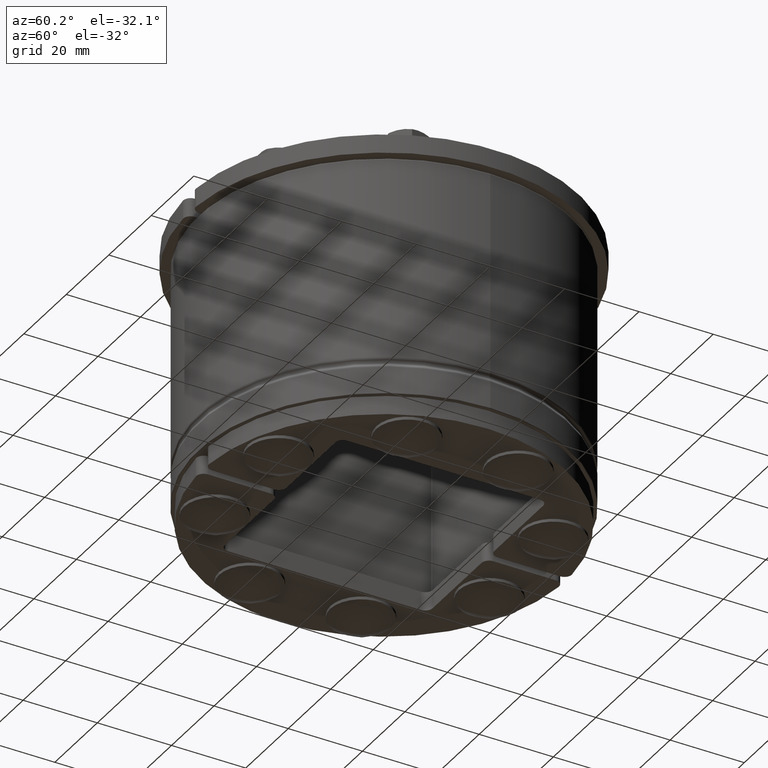
[diagram: clean part render]
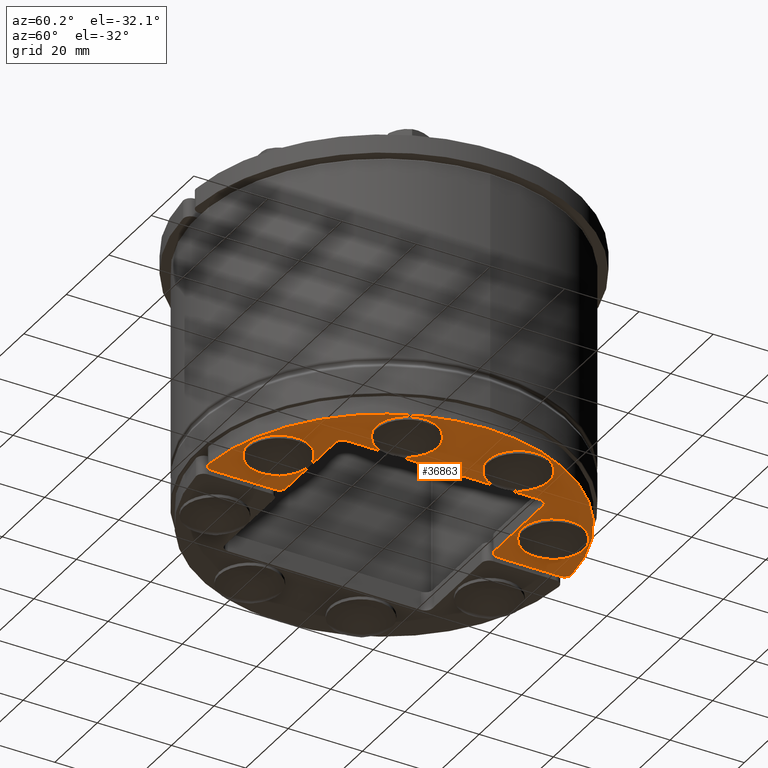
[diagram: same view with one face highlighted and labeled with its STEP entity id]
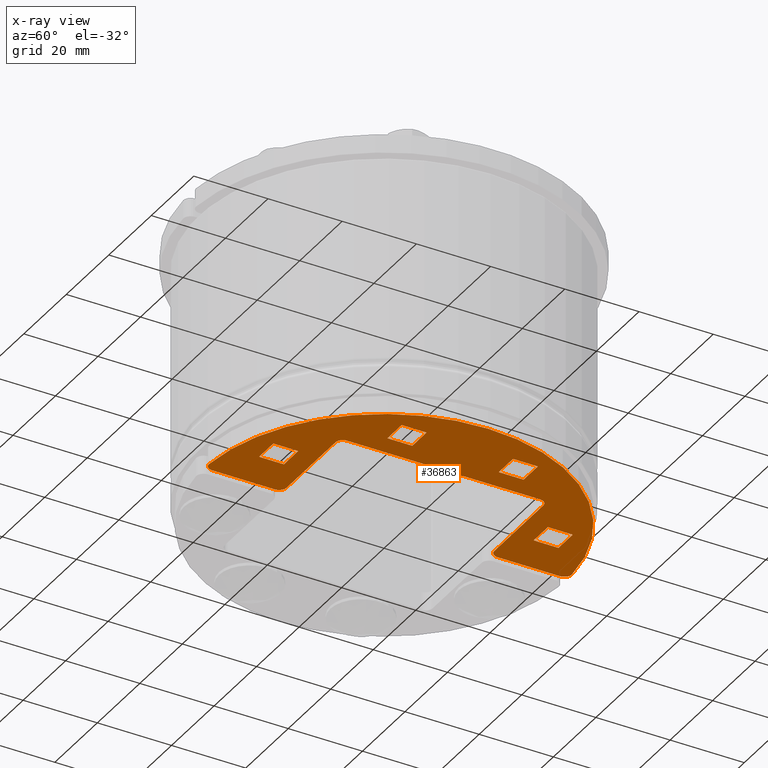
[diagram: x-ray of the same camera — body ghosted, the highlighted face saturated]
A machine part, auxiliary view. The second image highlights one B-rep face of the part: STEP entity #36863.
The next image is the same camera in x-ray: the body ghosted, the highlighted face saturated — about 0% of this face is hidden behind the body in this view.
In plain terms, the highlighted planar face has unit normal (0, 0, -1).
Its self-contained STEP definition (entity closure, byte-faithful):
#35899=CARTESIAN_POINT('',(46.904157598234299,-0.999999999999986,5.0));
#35900=VERTEX_POINT('',#35899);
#35901=CARTESIAN_POINT('',(48.900079198159162,-3.12765957446807,5.0));
#35902=VERTEX_POINT('',#35901);
#35903=CARTESIAN_POINT('',(46.904157598234299,-2.999999999999986,5.0));
#35904=DIRECTION('',(0.0,0.0,-1.0));
#35905=DIRECTION('',(0.729324957489472,0.684167454928236,0.0));
#35906=AXIS2_PLACEMENT_3D('',#35903,#35904,#35905);
#35907=CIRCLE('',#35906,2.0);
#35908=EDGE_CURVE('',#35900,#35902,#35907,.T.);
#35950=CARTESIAN_POINT('',(30.000000000000004,-0.999999999999991,5.0));
#35951=VERTEX_POINT('',#35950);
#35958=CARTESIAN_POINT('',(30.000000000000007,-0.999999999999991,5.0));
#35959=DIRECTION('',(1.0,0.0,0.0));
#35960=VECTOR('',#35959,16.904157598234292);
#35961=LINE('',#35958,#35960);
#35962=EDGE_CURVE('',#35951,#35900,#35961,.T.);
#36202=CARTESIAN_POINT('',(28.000000000000004,-2.999999999999994,5.0));
#36203=VERTEX_POINT('',#36202);
#36204=CARTESIAN_POINT('',(30.000000000000004,-2.999999999999993,5.0));
#36205=DIRECTION('',(0.0,0.0,-1.0));
#36206=DIRECTION('',(-0.707106781186548,0.707106781186547,0.0));
#36207=AXIS2_PLACEMENT_3D('',#36204,#36205,#36206);
#36208=CIRCLE('',#36207,2.0);
#36209=EDGE_CURVE('',#36203,#35951,#36208,.T.);
#36229=CARTESIAN_POINT('',(28.000000000000014,-25.999999999999996,5.0));
#36230=VERTEX_POINT('',#36229);
#36237=CARTESIAN_POINT('',(28.000000000000014,-26.0,5.0));
#36238=DIRECTION('',(0.0,1.0,0.0));
#36239=VECTOR('',#36238,23.000000000000004);
#36240=LINE('',#36237,#36239);
#36241=EDGE_CURVE('',#36230,#36203,#36240,.T.);
#36252=CARTESIAN_POINT('',(26.000000000000014,-28.0,5.0));
#36253=VERTEX_POINT('',#36252);
#36260=CARTESIAN_POINT('',(26.000000000000014,-25.999999999999996,5.0));
#36261=DIRECTION('',(0.0,0.0,1.0));
#36262=DIRECTION('',(0.707106781186548,-0.707106781186548,0.0));
#36263=AXIS2_PLACEMENT_3D('',#36260,#36261,#36262);
#36264=CIRCLE('',#36263,2.0);
#36265=EDGE_CURVE('',#36253,#36230,#36264,.T.);
#36278=CARTESIAN_POINT('',(-25.999999999999996,-28.000000000000007,5.0));
#36279=VERTEX_POINT('',#36278);
#36286=CARTESIAN_POINT('',(-26.0,-28.000000000000007,5.0));
#36287=DIRECTION('',(1.0,0.0,0.0));
#36288=VECTOR('',#36287,52.000000000000014);
#36289=LINE('',#36286,#36288);
#36290=EDGE_CURVE('',#36279,#36253,#36289,.T.);
#36300=CARTESIAN_POINT('',(-30.000000000000007,-1.000000000000006,5.0));
#36301=VERTEX_POINT('',#36300);
#36302=CARTESIAN_POINT('',(-28.000000000000004,-3.000000000000005,5.0));
#36303=VERTEX_POINT('',#36302);
#36304=CARTESIAN_POINT('',(-30.000000000000007,-3.000000000000006,5.0));
#36305=DIRECTION('',(0.0,0.0,-1.0));
#36306=DIRECTION('',(0.707106781186549,0.707106781186546,0.0));
#36307=AXIS2_PLACEMENT_3D('',#36304,#36305,#36306);
#36308=CIRCLE('',#36307,2.0);
#36309=EDGE_CURVE('',#36301,#36303,#36308,.T.);
#36334=CARTESIAN_POINT('',(-46.904157598234306,-1.000000000000009,5.0));
#36335=VERTEX_POINT('',#36334);
#36342=CARTESIAN_POINT('',(-46.904157598234306,-1.000000000000009,5.0));
#36343=DIRECTION('',(1.0,0.0,0.0));
#36344=VECTOR('',#36343,16.904157598234296);
#36345=LINE('',#36342,#36344);
#36346=EDGE_CURVE('',#36335,#36301,#36345,.T.);
#36356=CARTESIAN_POINT('',(-48.900079198159162,-3.127659574468089,5.0));
#36357=VERTEX_POINT('',#36356);
#36358=CARTESIAN_POINT('',(-46.904157598234306,-3.000000000000004,5.0));
#36359=DIRECTION('',(0.0,0.0,-1.0));
#36360=DIRECTION('',(-0.729324957489473,0.684167454928235,0.0));
#36361=AXIS2_PLACEMENT_3D('',#36358,#36359,#36360);
#36362=CIRCLE('',#36361,2.0);
#36363=EDGE_CURVE('',#36357,#36335,#36362,.T.);
#36382=CARTESIAN_POINT('',(-28.0,-26.000000000000007,5.0));
#36383=VERTEX_POINT('',#36382);
#36390=CARTESIAN_POINT('',(-25.999999999999996,-26.000000000000007,5.0));
#36391=DIRECTION('',(0.0,0.0,1.0));
#36392=DIRECTION('',(-0.707106781186548,-0.707106781186548,0.0));
#36393=AXIS2_PLACEMENT_3D('',#36390,#36391,#36392);
#36394=CIRCLE('',#36393,2.0);
#36395=EDGE_CURVE('',#36383,#36279,#36394,.T.);
#36407=CARTESIAN_POINT('',(-28.000000000000004,-3.000000000000005,5.0));
#36408=DIRECTION('',(0.0,-1.0,0.0));
#36409=VECTOR('',#36408,23.0);
#36410=LINE('',#36407,#36409);
#36411=EDGE_CURVE('',#36303,#36383,#36410,.T.);
#36424=CARTESIAN_POINT('',(40.350000000000001,-18.350000000000001,5.0));
#36425=VERTEX_POINT('',#36424);
#36432=CARTESIAN_POINT('',(40.350000000000001,-11.65,5.0));
#36433=VERTEX_POINT('',#36432);
#36434=CARTESIAN_POINT('',(40.350000000000001,-11.649999999999999,5.0));
#36435=DIRECTION('',(0.0,-1.0,0.0));
#36436=VECTOR('',#36435,6.699999999999999);
#36437=LINE('',#36434,#36436);
#36438=EDGE_CURVE('',#36433,#36425,#36437,.T.);
#36456=CARTESIAN_POINT('',(33.650000000000006,-11.65,5.0));
#36457=VERTEX_POINT('',#36456);
#36458=CARTESIAN_POINT('',(33.649999999999999,-11.65,5.0));
#36459=DIRECTION('',(1.0,0.0,0.0));
#36460=VECTOR('',#36459,6.700000000000003);
#36461=LINE('',#36458,#36460);
#36462=EDGE_CURVE('',#36457,#36433,#36461,.T.);
#36480=CARTESIAN_POINT('',(33.650000000000006,-18.350000000000001,5.0));
#36481=VERTEX_POINT('',#36480);
#36482=CARTESIAN_POINT('',(33.650000000000006,-18.350000000000001,5.0));
#36483=DIRECTION('',(0.0,1.0,0.0));
#36484=VECTOR('',#36483,6.700000000000001);
#36485=LINE('',#36482,#36484);
#36486=EDGE_CURVE('',#36481,#36457,#36485,.T.);
#36504=CARTESIAN_POINT('',(40.350000000000001,-18.350000000000001,5.0));
#36505=DIRECTION('',(-1.0,0.0,0.0));
#36506=VECTOR('',#36505,6.699999999999996);
#36507=LINE('',#36504,#36506);
#36508=EDGE_CURVE('',#36425,#36481,#36507,.T.);
#36520=CARTESIAN_POINT('',(18.350000000000001,-40.350000000000001,5.0));
#36521=VERTEX_POINT('',#36520);
#36528=CARTESIAN_POINT('',(18.350000000000005,-33.649999999999999,5.0));
#36529=VERTEX_POINT('',#36528);
#36530=CARTESIAN_POINT('',(18.350000000000005,-33.649999999999999,5.0));
#36531=DIRECTION('',(0.0,-1.0,0.0));
#36532=VECTOR('',#36531,6.700000000000003);
#36533=LINE('',#36530,#36532);
#36534=EDGE_CURVE('',#36529,#36521,#36533,.T.);
#36552=CARTESIAN_POINT('',(11.649999999999995,-33.649999999999999,5.0));
#36553=VERTEX_POINT('',#36552);
#36554=CARTESIAN_POINT('',(11.649999999999997,-33.649999999999991,5.0));
#36555=DIRECTION('',(1.0,0.0,0.0));
#36556=VECTOR('',#36555,6.700000000000008);
#36557=LINE('',#36554,#36556);
#36558=EDGE_CURVE('',#36553,#36529,#36557,.T.);
#36576=CARTESIAN_POINT('',(11.65,-40.350000000000001,5.0));
#36577=VERTEX_POINT('',#36576);
#36578=CARTESIAN_POINT('',(11.65,-40.350000000000001,5.0));
#36579=DIRECTION('',(0.0,1.0,0.0));
#36580=VECTOR('',#36579,6.700000000000003);
#36581=LINE('',#36578,#36580);
#36582=EDGE_CURVE('',#36577,#36553,#36581,.T.);
#36600=CARTESIAN_POINT('',(18.350000000000001,-40.350000000000001,5.0));
#36601=DIRECTION('',(-1.0,0.0,0.0));
#36602=VECTOR('',#36601,6.700000000000001);
#36603=LINE('',#36600,#36602);
#36604=EDGE_CURVE('',#36521,#36577,#36603,.T.);
#36616=CARTESIAN_POINT('',(-11.65,-40.350000000000001,5.0));
#36617=VERTEX_POINT('',#36616);
#36624=CARTESIAN_POINT('',(-11.65,-33.649999999999999,5.0));
#36625=VERTEX_POINT('',#36624);
#36626=CARTESIAN_POINT('',(-11.65,-33.649999999999999,5.0));
#36627=DIRECTION('',(0.0,-1.0,0.0));
#36628=VECTOR('',#36627,6.700000000000003);
#36629=LINE('',#36626,#36628);
#36630=EDGE_CURVE('',#36625,#36617,#36629,.T.);
#36648=CARTESIAN_POINT('',(-18.350000000000001,-33.649999999999999,5.0));
#36649=VERTEX_POINT('',#36648);
#36650=CARTESIAN_POINT('',(-18.350000000000001,-33.649999999999991,5.0));
#36651=DIRECTION('',(1.0,0.0,0.0));
#36652=VECTOR('',#36651,6.700000000000001);
#36653=LINE('',#36650,#36652);
#36654=EDGE_CURVE('',#36649,#36625,#36653,.T.);
#36672=CARTESIAN_POINT('',(-18.350000000000001,-40.350000000000001,5.0));
#36673=VERTEX_POINT('',#36672);
#36674=CARTESIAN_POINT('',(-18.350000000000001,-40.350000000000001,5.0));
#36675=DIRECTION('',(0.0,1.0,0.0));
#36676=VECTOR('',#36675,6.700000000000003);
#36677=LINE('',#36674,#36676);
#36678=EDGE_CURVE('',#36673,#36649,#36677,.T.);
#36696=CARTESIAN_POINT('',(-11.649999999999999,-40.350000000000001,5.0));
#36697=DIRECTION('',(-1.0,0.0,0.0));
#36698=VECTOR('',#36697,6.699999999999999);
#36699=LINE('',#36696,#36698);
#36700=EDGE_CURVE('',#36617,#36673,#36699,.T.);
#36712=CARTESIAN_POINT('',(-33.649999999999999,-18.350000000000005,5.0));
#36713=VERTEX_POINT('',#36712);
#36720=CARTESIAN_POINT('',(-33.650000000000006,-11.650000000000006,5.0));
#36721=VERTEX_POINT('',#36720);
#36722=CARTESIAN_POINT('',(-33.649999999999999,-11.650000000000004,5.0));
#36723=DIRECTION('',(0.0,-1.0,0.0));
#36724=VECTOR('',#36723,6.699999999999998);
#36725=LINE('',#36722,#36724);
#36726=EDGE_CURVE('',#36721,#36713,#36725,.T.);
#36744=CARTESIAN_POINT('',(-40.350000000000001,-11.650000000000006,5.0));
#36745=VERTEX_POINT('',#36744);
#36746=CARTESIAN_POINT('',(-40.350000000000001,-11.650000000000006,5.0));
#36747=DIRECTION('',(1.0,0.0,0.0));
#36748=VECTOR('',#36747,6.699999999999996);
#36749=LINE('',#36746,#36748);
#36750=EDGE_CURVE('',#36745,#36721,#36749,.T.);
#36768=CARTESIAN_POINT('',(-40.350000000000001,-18.350000000000005,5.0));
#36769=VERTEX_POINT('',#36768);
#36770=CARTESIAN_POINT('',(-40.350000000000001,-18.350000000000005,5.0));
#36771=DIRECTION('',(0.0,1.0,0.0));
#36772=VECTOR('',#36771,6.699999999999999);
#36773=LINE('',#36770,#36772);
#36774=EDGE_CURVE('',#36769,#36745,#36773,.T.);
#36792=CARTESIAN_POINT('',(-33.649999999999999,-18.350000000000001,5.0));
#36793=DIRECTION('',(-1.0,0.0,0.0));
#36794=VECTOR('',#36793,6.700000000000003);
#36795=LINE('',#36792,#36794);
#36796=EDGE_CURVE('',#36713,#36769,#36795,.T.);
#36808=CARTESIAN_POINT('',(0.0,0.0,5.0));
#36809=DIRECTION('',(0.0,0.0,-1.0));
#36810=DIRECTION('',(0.999791731748236,0.020408163265306,0.0));
#36811=AXIS2_PLACEMENT_3D('',#36808,#36809,#36810);
#36812=CIRCLE('',#36811,49.000000000000007);
#36813=EDGE_CURVE('',#35902,#36357,#36812,.T.);
#36820=CARTESIAN_POINT('',(-1.748601E-014,-22.164934044324511,5.0));
#36821=DIRECTION('',(0.0,0.0,1.0));
#36822=DIRECTION('',(1.0,0.0,0.0));
#36823=AXIS2_PLACEMENT_3D('',#36820,#36821,#36822);
#36824=PLANE('',#36823);
#36825=ORIENTED_EDGE('',*,*,#35908,.F.);
#36826=ORIENTED_EDGE('',*,*,#35962,.F.);
#36827=ORIENTED_EDGE('',*,*,#36209,.F.);
#36828=ORIENTED_EDGE('',*,*,#36241,.F.);
#36829=ORIENTED_EDGE('',*,*,#36265,.F.);
#36830=ORIENTED_EDGE('',*,*,#36290,.F.);
#36831=ORIENTED_EDGE('',*,*,#36395,.F.);
#36832=ORIENTED_EDGE('',*,*,#36411,.F.);
#36833=ORIENTED_EDGE('',*,*,#36309,.F.);
#36834=ORIENTED_EDGE('',*,*,#36346,.F.);
#36835=ORIENTED_EDGE('',*,*,#36363,.F.);
#36836=ORIENTED_EDGE('',*,*,#36813,.F.);
#36837=EDGE_LOOP('',(#36825,#36826,#36827,#36828,#36829,#36830,#36831,#36832,#36833,#36834,#36835,#36836));
#36838=FACE_OUTER_BOUND('',#36837,.T.);
#36839=ORIENTED_EDGE('',*,*,#36486,.T.);
#36840=ORIENTED_EDGE('',*,*,#36462,.T.);
#36841=ORIENTED_EDGE('',*,*,#36438,.T.);
#36842=ORIENTED_EDGE('',*,*,#36508,.T.);
#36843=EDGE_LOOP('',(#36839,#36840,#36841,#36842));
#36844=FACE_BOUND('',#36843,.T.);
#36845=ORIENTED_EDGE('',*,*,#36582,.T.);
#36846=ORIENTED_EDGE('',*,*,#36558,.T.);
#36847=ORIENTED_EDGE('',*,*,#36534,.T.);
#36848=ORIENTED_EDGE('',*,*,#36604,.T.);
#36849=EDGE_LOOP('',(#36845,#36846,#36847,#36848));
#36850=FACE_BOUND('',#36849,.T.);
#36851=ORIENTED_EDGE('',*,*,#36678,.T.);
#36852=ORIENTED_EDGE('',*,*,#36654,.T.);
#36853=ORIENTED_EDGE('',*,*,#36630,.T.);
#36854=ORIENTED_EDGE('',*,*,#36700,.T.);
#36855=EDGE_LOOP('',(#36851,#36852,#36853,#36854));
#36856=FACE_BOUND('',#36855,.T.);
#36857=ORIENTED_EDGE('',*,*,#36774,.T.);
#36858=ORIENTED_EDGE('',*,*,#36750,.T.);
#36859=ORIENTED_EDGE('',*,*,#36726,.T.);
#36860=ORIENTED_EDGE('',*,*,#36796,.T.);
#36861=EDGE_LOOP('',(#36857,#36858,#36859,#36860));
#36862=FACE_BOUND('',#36861,.T.);
#36863=ADVANCED_FACE('',(#36838,#36844,#36850,#36856,#36862),#36824,.T.);